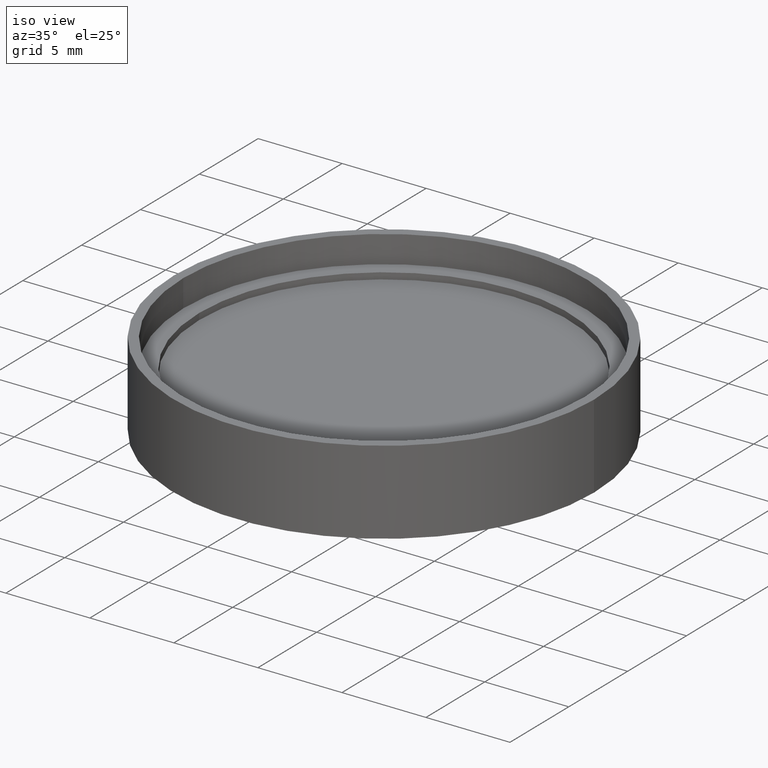
[diagram: clean part render]
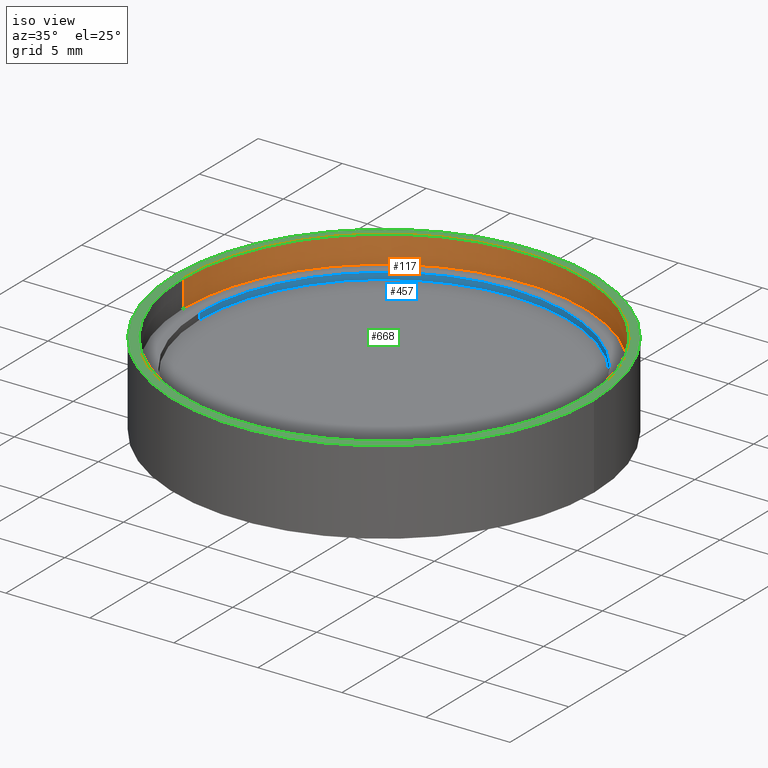
[diagram: same view with three faces highlighted in distinct colors, each labeled with its STEP entity id]
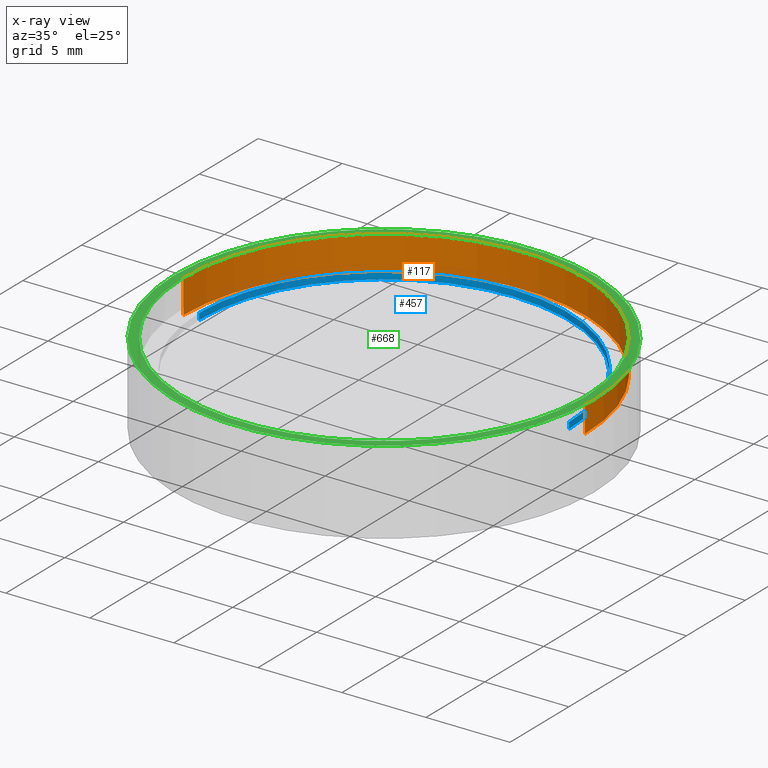
[diagram: x-ray of the same camera — body ghosted, the three highlighted faces saturated]
A machine part, iso view with three faces highlighted in distinct colors.
The next image is the same camera in x-ray (body ghosted, the three faces saturated) — at least one of them is partly hidden behind the body in this view.
Their STEP definitions:

[orange] entity #117 — the highlighted cylindrical surface (partial cylindrical patch) has radius 11.95 mm, axis along (-0, -0, -1).
#57 = VERTEX_POINT ( 'NONE', #148 ) ;
#59 = CARTESIAN_POINT ( 'NONE',  ( -11.94999999999999900, 0.0000000000000000000, 4.380999999999999300 ) ) ;
#104 = AXIS2_PLACEMENT_3D ( 'NONE', #487, #263, #599 ) ;
#117 = ADVANCED_FACE ( 'NONE', ( #528 ), #448, .F. ) ;
#148 = CARTESIAN_POINT ( 'NONE',  ( 11.94999999999999900, 1.463452924981086900E-015, 2.381000000000001100 ) ) ;
#175 = ORIENTED_EDGE ( 'NONE', *, *, #708, .F. ) ;
#189 = CARTESIAN_POINT ( 'NONE',  ( -11.94999999999999900, 0.0000000000000000000, -3.685474932512929200 ) ) ;
#200 = EDGE_CURVE ( 'NONE', #475, #411, #602, .T. ) ;
#258 = AXIS2_PLACEMENT_3D ( 'NONE', #317, #309, #598 ) ;
#261 = EDGE_LOOP ( 'NONE', ( #175, #372, #484, #589 ) ) ;
#263 = DIRECTION ( 'NONE',  ( -0.0000000000000000000, -0.0000000000000000000, -1.000000000000000000 ) ) ;
#288 = DIRECTION ( 'NONE',  ( -0.0000000000000000000, -0.0000000000000000000, -1.000000000000000000 ) ) ;
#292 = CARTESIAN_POINT ( 'NONE',  ( -11.94999999999999900, 0.0000000000000000000, 2.381000000000001100 ) ) ;
#309 = DIRECTION ( 'NONE',  ( -0.0000000000000000000, -0.0000000000000000000, -1.000000000000000000 ) ) ;
#311 = LINE ( 'NONE', #189, #466 ) ;
#317 = CARTESIAN_POINT ( 'NONE',  ( 0.0000000000000000000, 0.0000000000000000000, -3.685474932512929200 ) ) ;
#351 = CARTESIAN_POINT ( 'NONE',  ( 11.94999999999999900, 1.463452924981086900E-015, -3.685474932512929200 ) ) ;
#372 = ORIENTED_EDGE ( 'NONE', *, *, #200, .F. ) ;
#380 = CARTESIAN_POINT ( 'NONE',  ( 0.0000000000000000000, -4.665750208063244300E-017, 2.381000000000001100 ) ) ;
#393 = CARTESIAN_POINT ( 'NONE',  ( 11.94999999999999900, 1.463452924981086900E-015, 4.380999999999999300 ) ) ;
#410 = LINE ( 'NONE', #351, #618 ) ;
#411 = VERTEX_POINT ( 'NONE', #393 ) ;
#428 = AXIS2_PLACEMENT_3D ( 'NONE', #380, #609, #563 ) ;
#448 = CYLINDRICAL_SURFACE ( 'NONE', #258, 11.94999999999999900 ) ;
#449 = EDGE_CURVE ( 'NONE', #697, #57, #615, .T. ) ;
#466 = VECTOR ( 'NONE', #288, 1000.000000000000000 ) ;
#475 = VERTEX_POINT ( 'NONE', #59 ) ;
#484 = ORIENTED_EDGE ( 'NONE', *, *, #625, .T. ) ;
#487 = CARTESIAN_POINT ( 'NONE',  ( 0.0000000000000000000, 0.0000000000000000000, 4.380999999999999300 ) ) ;
#528 = FACE_OUTER_BOUND ( 'NONE', #261, .T. ) ;
#563 = DIRECTION ( 'NONE',  ( 1.000000000000000000, 0.0000000000000000000, 0.0000000000000000000 ) ) ;
#589 = ORIENTED_EDGE ( 'NONE', *, *, #449, .T. ) ;
#598 = DIRECTION ( 'NONE',  ( -1.000000000000000000, 0.0000000000000000000, 0.0000000000000000000 ) ) ;
#599 = DIRECTION ( 'NONE',  ( -1.000000000000000000, 0.0000000000000000000, 0.0000000000000000000 ) ) ;
#602 = CIRCLE ( 'NONE', #104, 11.94999999999999900 ) ;
#609 = DIRECTION ( 'NONE',  ( -0.0000000000000000000, -0.0000000000000000000, -1.000000000000000000 ) ) ;
#615 = CIRCLE ( 'NONE', #428, 11.94999999999999900 ) ;
#618 = VECTOR ( 'NONE', #692, 1000.000000000000000 ) ;
#625 = EDGE_CURVE ( 'NONE', #475, #697, #311, .T. ) ;
#692 = DIRECTION ( 'NONE',  ( -0.0000000000000000000, -0.0000000000000000000, -1.000000000000000000 ) ) ;
#697 = VERTEX_POINT ( 'NONE', #292 ) ;
#708 = EDGE_CURVE ( 'NONE', #411, #57, #410, .T. ) ;

[blue] entity #457 — the highlighted cylindrical surface (partial cylindrical patch) has radius 11 mm, axis along (-0, -0, 1).
#6 = VECTOR ( 'NONE', #574, 1000.000000000000000 ) ;
#22 = FACE_OUTER_BOUND ( 'NONE', #616, .T. ) ;
#23 = CARTESIAN_POINT ( 'NONE',  ( 11.00000000000000000, 0.0000000000000000000, -28.73169837220808300 ) ) ;
#49 = CARTESIAN_POINT ( 'NONE',  ( 11.00000000000000000, 0.0000000000000000000, 2.761999999999998700 ) ) ;
#79 = EDGE_CURVE ( 'NONE', #181, #310, #301, .T. ) ;
#96 = CARTESIAN_POINT ( 'NONE',  ( 0.0000000000000000000, 0.0000000000000000000, 2.761999999999998700 ) ) ;
#120 = DIRECTION ( 'NONE',  ( 1.000000000000000000, 0.0000000000000000000, 0.0000000000000000000 ) ) ;
#181 = VERTEX_POINT ( 'NONE', #49 ) ;
#248 = CIRCLE ( 'NONE', #275, 11.00000000000000000 ) ;
#273 = DIRECTION ( 'NONE',  ( -0.0000000000000000000, -0.0000000000000000000, 1.000000000000000000 ) ) ;
#275 = AXIS2_PLACEMENT_3D ( 'NONE', #290, #460, #632 ) ;
#289 = ORIENTED_EDGE ( 'NONE', *, *, #535, .T. ) ;
#290 = CARTESIAN_POINT ( 'NONE',  ( 0.0000000000000000000, 0.0000000000000000000, 2.381000000000001100 ) ) ;
#298 = DIRECTION ( 'NONE',  ( 0.0000000000000000000, 0.0000000000000000000, 1.000000000000000000 ) ) ;
#301 = CIRCLE ( 'NONE', #425, 11.00000000000000000 ) ;
#302 = AXIS2_PLACEMENT_3D ( 'NONE', #721, #273, #120 ) ;
#310 = VERTEX_POINT ( 'NONE', #663 ) ;
#316 = LINE ( 'NONE', #455, #639 ) ;
#322 = CARTESIAN_POINT ( 'NONE',  ( -11.00000000000000000, 1.347111479062088400E-015, 2.381000000000001100 ) ) ;
#323 = VERTEX_POINT ( 'NONE', #322 ) ;
#330 = EDGE_CURVE ( 'NONE', #323, #310, #316, .T. ) ;
#388 = VERTEX_POINT ( 'NONE', #512 ) ;
#412 = ORIENTED_EDGE ( 'NONE', *, *, #684, .T. ) ;
#425 = AXIS2_PLACEMENT_3D ( 'NONE', #96, #298, #477 ) ;
#455 = CARTESIAN_POINT ( 'NONE',  ( -11.00000000000000000, 1.347111479062088400E-015, -28.73169837220808300 ) ) ;
#457 = ADVANCED_FACE ( 'NONE', ( #22 ), #520, .F. ) ;
#460 = DIRECTION ( 'NONE',  ( -0.0000000000000000000, -0.0000000000000000000, -1.000000000000000000 ) ) ;
#477 = DIRECTION ( 'NONE',  ( 1.000000000000000000, 0.0000000000000000000, 0.0000000000000000000 ) ) ;
#512 = CARTESIAN_POINT ( 'NONE',  ( 11.00000000000000000, 0.0000000000000000000, 2.381000000000001100 ) ) ;
#513 = ORIENTED_EDGE ( 'NONE', *, *, #330, .F. ) ;
#520 = CYLINDRICAL_SURFACE ( 'NONE', #302, 11.00000000000000000 ) ;
#535 = EDGE_CURVE ( 'NONE', #323, #388, #248, .T. ) ;
#559 = DIRECTION ( 'NONE',  ( -0.0000000000000000000, -0.0000000000000000000, 1.000000000000000000 ) ) ;
#574 = DIRECTION ( 'NONE',  ( -0.0000000000000000000, -0.0000000000000000000, 1.000000000000000000 ) ) ;
#616 = EDGE_LOOP ( 'NONE', ( #513, #289, #412, #683 ) ) ;
#632 = DIRECTION ( 'NONE',  ( 1.000000000000000000, 0.0000000000000000000, 0.0000000000000000000 ) ) ;
#639 = VECTOR ( 'NONE', #559, 1000.000000000000000 ) ;
#663 = CARTESIAN_POINT ( 'NONE',  ( -11.00000000000000000, 1.347111479062088400E-015, 2.761999999999998700 ) ) ;
#682 = LINE ( 'NONE', #23, #6 ) ;
#683 = ORIENTED_EDGE ( 'NONE', *, *, #79, .T. ) ;
#684 = EDGE_CURVE ( 'NONE', #388, #181, #682, .T. ) ;
#721 = CARTESIAN_POINT ( 'NONE',  ( 0.0000000000000000000, 0.0000000000000000000, -28.73169837220808300 ) ) ;

[green] entity #668 — the highlighted planar face has unit normal (0, 0, 1).
#3 = DIRECTION ( 'NONE',  ( -1.000000000000000000, 0.0000000000000000000, 0.0000000000000000000 ) ) ;
#43 = DIRECTION ( 'NONE',  ( -0.0000000000000000000, -0.0000000000000000000, -1.000000000000000000 ) ) ;
#59 = CARTESIAN_POINT ( 'NONE',  ( -11.94999999999999900, 0.0000000000000000000, 4.380999999999999300 ) ) ;
#77 = PLANE ( 'NONE',  #482 ) ;
#104 = AXIS2_PLACEMENT_3D ( 'NONE', #487, #263, #599 ) ;
#113 = VERTEX_POINT ( 'NONE', #214 ) ;
#118 = EDGE_CURVE ( 'NONE', #113, #549, #511, .T. ) ;
#126 = ORIENTED_EDGE ( 'NONE', *, *, #699, .F. ) ;
#134 = CARTESIAN_POINT ( 'NONE',  ( -11.94999999999999900, 0.0000000000000000000, 4.381000000000000200 ) ) ;
#159 = FACE_BOUND ( 'NONE', #364, .T. ) ;
#176 = FACE_OUTER_BOUND ( 'NONE', #522, .T. ) ;
#185 = DIRECTION ( 'NONE',  ( 1.000000000000000000, 0.0000000000000000000, -0.0000000000000000000 ) ) ;
#200 = EDGE_CURVE ( 'NONE', #475, #411, #602, .T. ) ;
#214 = CARTESIAN_POINT ( 'NONE',  ( -12.49999999999999800, 0.0000000000000000000, 4.380999999999999300 ) ) ;
#224 = ORIENTED_EDGE ( 'NONE', *, *, #200, .T. ) ;
#234 = AXIS2_PLACEMENT_3D ( 'NONE', #342, #337, #3 ) ;
#263 = DIRECTION ( 'NONE',  ( -0.0000000000000000000, -0.0000000000000000000, -1.000000000000000000 ) ) ;
#291 = AXIS2_PLACEMENT_3D ( 'NONE', #299, #404, #641 ) ;
#299 = CARTESIAN_POINT ( 'NONE',  ( 0.0000000000000000000, 0.0000000000000000000, 4.380999999999999300 ) ) ;
#318 = DIRECTION ( 'NONE',  ( -1.000000000000000000, 0.0000000000000000000, 0.0000000000000000000 ) ) ;
#337 = DIRECTION ( 'NONE',  ( -0.0000000000000000000, -0.0000000000000000000, -1.000000000000000000 ) ) ;
#342 = CARTESIAN_POINT ( 'NONE',  ( 0.0000000000000000000, 0.0000000000000000000, 4.380999999999999300 ) ) ;
#364 = EDGE_LOOP ( 'NONE', ( #224, #469 ) ) ;
#393 = CARTESIAN_POINT ( 'NONE',  ( 11.94999999999999900, 1.463452924981086900E-015, 4.380999999999999300 ) ) ;
#404 = DIRECTION ( 'NONE',  ( -0.0000000000000000000, -0.0000000000000000000, -1.000000000000000000 ) ) ;
#411 = VERTEX_POINT ( 'NONE', #393 ) ;
#441 = CARTESIAN_POINT ( 'NONE',  ( 12.49999999999999800, 1.530808498934191300E-015, 4.380999999999999300 ) ) ;
#458 = DIRECTION ( 'NONE',  ( 0.0000000000000000000, 0.0000000000000000000, 1.000000000000000000 ) ) ;
#469 = ORIENTED_EDGE ( 'NONE', *, *, #481, .T. ) ;
#475 = VERTEX_POINT ( 'NONE', #59 ) ;
#481 = EDGE_CURVE ( 'NONE', #411, #475, #502, .T. ) ;
#482 = AXIS2_PLACEMENT_3D ( 'NONE', #134, #458, #185 ) ;
#487 = CARTESIAN_POINT ( 'NONE',  ( 0.0000000000000000000, 0.0000000000000000000, 4.380999999999999300 ) ) ;
#499 = AXIS2_PLACEMENT_3D ( 'NONE', #707, #43, #318 ) ;
#502 = CIRCLE ( 'NONE', #234, 11.94999999999999900 ) ;
#511 = CIRCLE ( 'NONE', #499, 12.49999999999999800 ) ;
#522 = EDGE_LOOP ( 'NONE', ( #652, #126 ) ) ;
#549 = VERTEX_POINT ( 'NONE', #441 ) ;
#595 = CIRCLE ( 'NONE', #291, 12.49999999999999800 ) ;
#599 = DIRECTION ( 'NONE',  ( -1.000000000000000000, 0.0000000000000000000, 0.0000000000000000000 ) ) ;
#602 = CIRCLE ( 'NONE', #104, 11.94999999999999900 ) ;
#641 = DIRECTION ( 'NONE',  ( -1.000000000000000000, 0.0000000000000000000, 0.0000000000000000000 ) ) ;
#652 = ORIENTED_EDGE ( 'NONE', *, *, #118, .F. ) ;
#668 = ADVANCED_FACE ( 'NONE', ( #159, #176 ), #77, .T. ) ;
#699 = EDGE_CURVE ( 'NONE', #549, #113, #595, .T. ) ;
#707 = CARTESIAN_POINT ( 'NONE',  ( 0.0000000000000000000, 0.0000000000000000000, 4.380999999999999300 ) ) ;